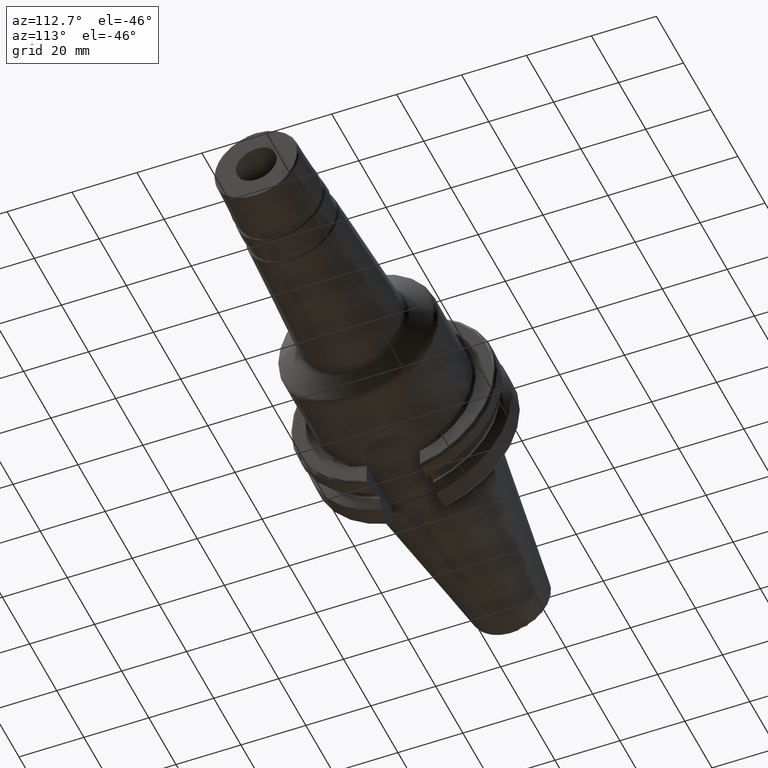
[diagram: clean part render]
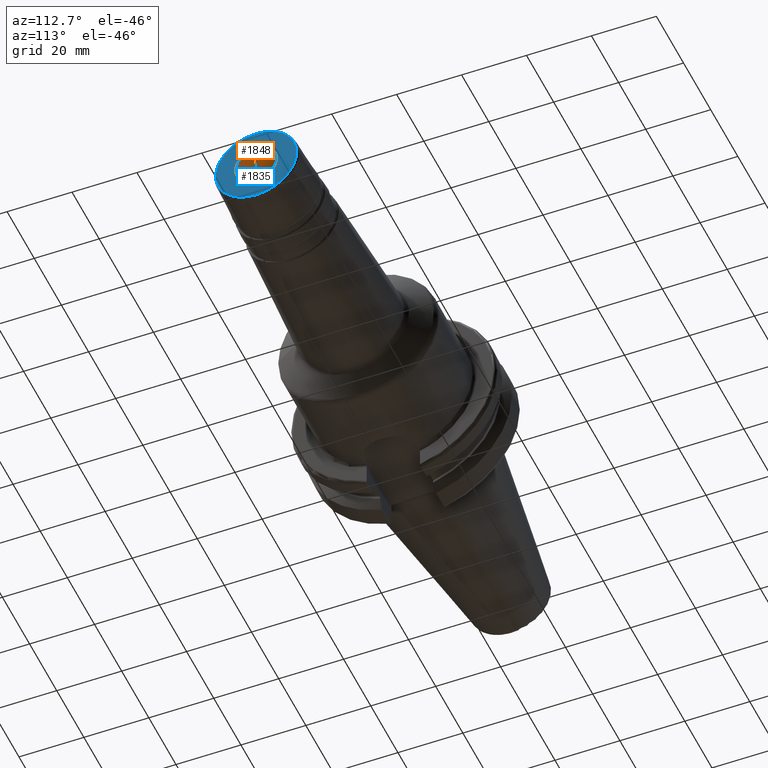
[diagram: same view with the hole feature highlighted: cylindrical wall and planar end face, labeled with their STEP entity ids]
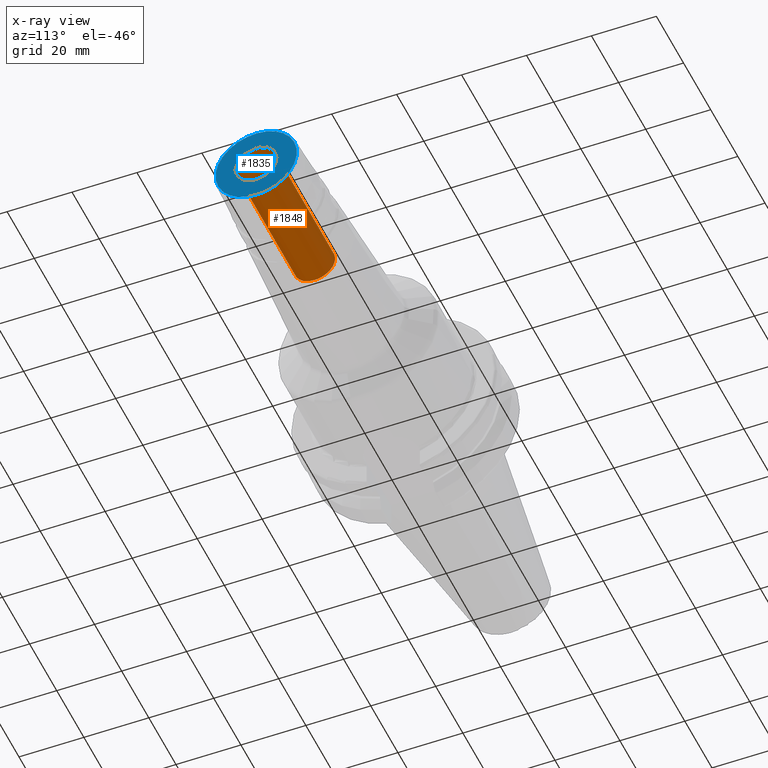
[diagram: x-ray of the same camera — body ghosted, the hole faces saturated]
A machine part, auxiliary view. The highlighted faces form one hole feature of diameter 12.7 mm: the cylindrical wall (entity #1848, orange) and its adjacent planar end face (entity #1835, blue) — they share a circular edge in the B-rep.
The next image is the same camera in x-ray (body ghosted, the hole faces saturated) — the bore reads through the body.
Wall:
#56=CYLINDRICAL_SURFACE('',#2045,6.34999999999998);
#187=LINE('',#3103,#280);
#280=VECTOR('',#2419,6.34999999999998);
#407=FACE_OUTER_BOUND('',#517,.T.);
#517=EDGE_LOOP('',(#1389,#1390,#1391,#1392));
#649=CIRCLE('',#2011,6.34999999999999);
#671=CIRCLE('',#2046,6.34999999999998);
#767=VERTEX_POINT('',#2906);
#797=VERTEX_POINT('',#3102);
#978=EDGE_CURVE('',#767,#767,#649,.T.);
#1019=EDGE_CURVE('',#767,#797,#187,.T.);
#1020=EDGE_CURVE('',#797,#797,#671,.T.);
#1389=ORIENTED_EDGE('',*,*,#978,.T.);
#1390=ORIENTED_EDGE('',*,*,#1019,.T.);
#1391=ORIENTED_EDGE('',*,*,#1020,.F.);
#1392=ORIENTED_EDGE('',*,*,#1019,.F.);
#1848=ADVANCED_FACE('',(#407),#56,.F.);
#2011=AXIS2_PLACEMENT_3D('',#2907,#2338,#2339);
#2045=AXIS2_PLACEMENT_3D('',#3101,#2417,#2418);
#2046=AXIS2_PLACEMENT_3D('',#3104,#2420,#2421);
#2338=DIRECTION('center_axis',(1.,0.,0.));
#2339=DIRECTION('ref_axis',(0.,0.,-1.));
#2417=DIRECTION('center_axis',(1.,0.,0.));
#2418=DIRECTION('ref_axis',(0.,1.,0.));
#2419=DIRECTION('',(-1.,0.,0.));
#2420=DIRECTION('center_axis',(1.,0.,0.));
#2421=DIRECTION('ref_axis',(0.,0.,-1.));
#2906=CARTESIAN_POINT('',(120.,-6.34999999999998,-7.77650717458567E-16));
#2907=CARTESIAN_POINT('Origin',(120.,0.,0.));
#3101=CARTESIAN_POINT('Origin',(98.5,0.,0.));
#3102=CARTESIAN_POINT('',(77.,-6.34999999999998,-7.77650717458567E-16));
#3103=CARTESIAN_POINT('',(98.5,-6.34999999999998,-7.77650717458567E-16));
#3104=CARTESIAN_POINT('Origin',(77.,0.,0.));
End face:
#117=FACE_BOUND('',#501,.T.);
#132=PLANE('',#2010);
#394=FACE_OUTER_BOUND('',#500,.T.);
#500=EDGE_LOOP('',(#1322));
#501=EDGE_LOOP('',(#1323));
#647=CIRCLE('',#2008,12.5255177166426);
#649=CIRCLE('',#2011,6.34999999999999);
#766=VERTEX_POINT('',#2902);
#767=VERTEX_POINT('',#2906);
#976=EDGE_CURVE('',#766,#766,#647,.T.);
#978=EDGE_CURVE('',#767,#767,#649,.T.);
#1322=ORIENTED_EDGE('',*,*,#976,.F.);
#1323=ORIENTED_EDGE('',*,*,#978,.F.);
#1835=ADVANCED_FACE('',(#394,#117),#132,.T.);
#2008=AXIS2_PLACEMENT_3D('',#2903,#2332,#2333);
#2010=AXIS2_PLACEMENT_3D('',#2905,#2336,#2337);
#2011=AXIS2_PLACEMENT_3D('',#2907,#2338,#2339);
#2332=DIRECTION('center_axis',(-1.,0.,0.));
#2333=DIRECTION('ref_axis',(0.,-1.,1.83697019872103E-16));
#2336=DIRECTION('center_axis',(1.,0.,0.));
#2337=DIRECTION('ref_axis',(0.,0.,-1.));
#2338=DIRECTION('center_axis',(1.,0.,0.));
#2339=DIRECTION('ref_axis',(0.,0.,-1.));
#2902=CARTESIAN_POINT('',(120.,-1.53393351793498E-15,12.5255177166426));
#2903=CARTESIAN_POINT('Origin',(120.,0.,0.));
#2905=CARTESIAN_POINT('Origin',(120.,6.34999999999999,0.));
#2906=CARTESIAN_POINT('',(120.,-6.34999999999998,-7.77650717458567E-16));
#2907=CARTESIAN_POINT('Origin',(120.,0.,0.));